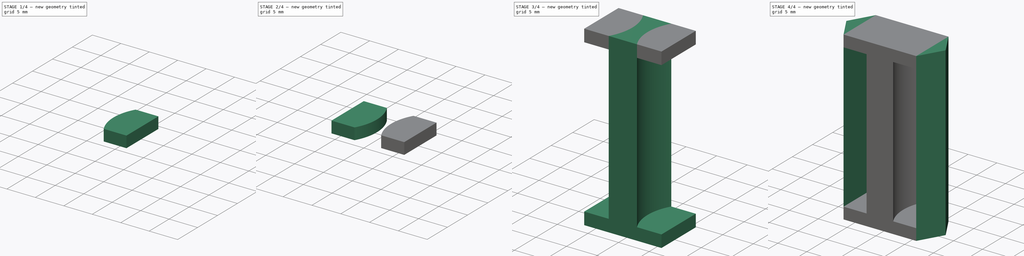
[diagram: build sequence overview — one tinted view per stage of 4, left to right]
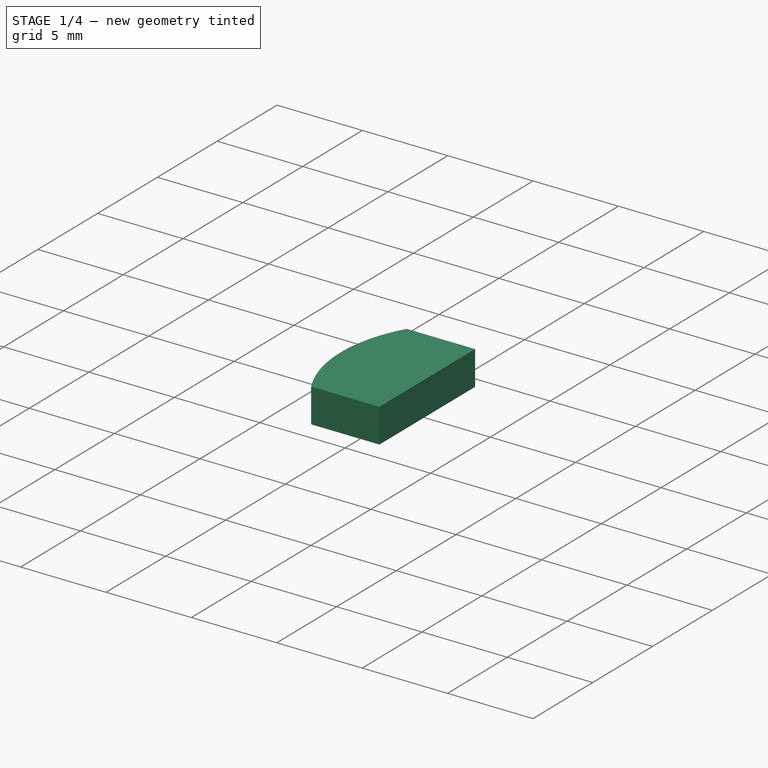
[diagram: stage 1 of 4 — iso view after this stage's code; geometry added in this stage tinted green]
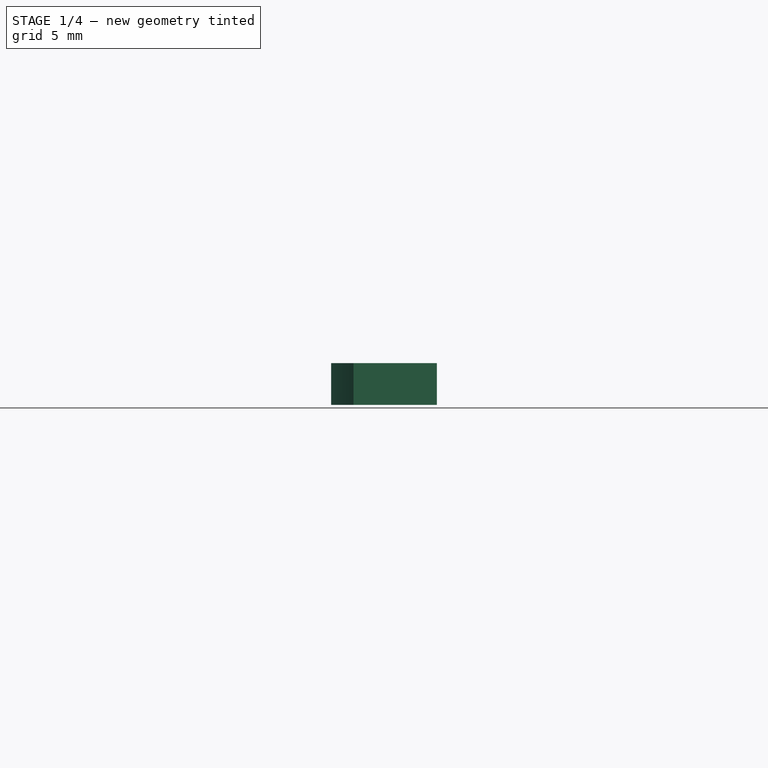
[diagram: stage 1 of 4 — front view after this stage's code; geometry added in this stage tinted green]
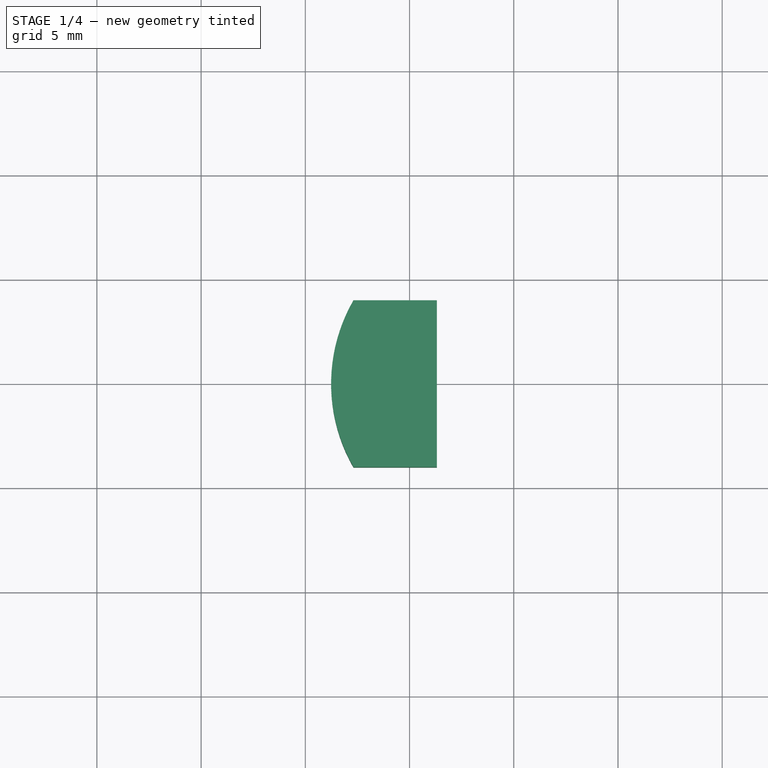
[diagram: stage 1 of 4 — top view after this stage's code; geometry added in this stage tinted green]
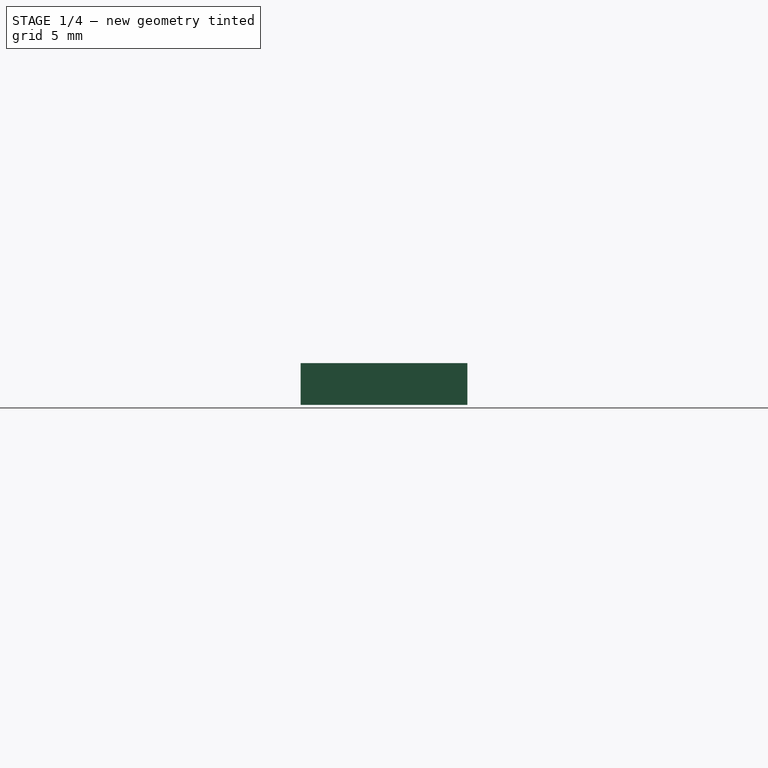
[diagram: stage 1 of 4 — right view after this stage's code; geometry added in this stage tinted green]
FCSTD DOCUMENT  (FreeCAD 0.18R16161 (Git))
Label: fixator01part
License: All rights reserved
LicenseURL: http://en.wikipedia.org/wiki/All_rights_reserved
objects: Part::Extrusion×9, Surface::Filling×5, Part::Cut×2, Sketcher::SketchObject×1, Part::MultiFuse×1, Part::Feature×1
note: 19 computed .brp shape members not serialized (recipe doc carries the construction recipe); baked Part::Feature solids carry a one-line shape summary decoded from their .brp

FEATURE [Part::Extrusion] Extrude003
  Base = -> Surface002
  Dir = (0,0,1)
  DirMode = 0
  FaceMakerClass = Part::FaceMakerBullseye
  LengthFwd = 29
  LengthRev = 0
  Solid = false
  Symmetric = false
FEATURE [Part::Extrusion] Extrude005
  Base = -> Surface002
  Dir = (0,0,1)
  DirMode = 0
  FaceMakerClass = Part::FaceMakerBullseye
  LengthFwd = 27
  LengthRev = 0
  Solid = false
  Symmetric = false
FEATURE [Part::Cut] Cut001
  Base = -> Extrude003
  Tool = -> Extrude005
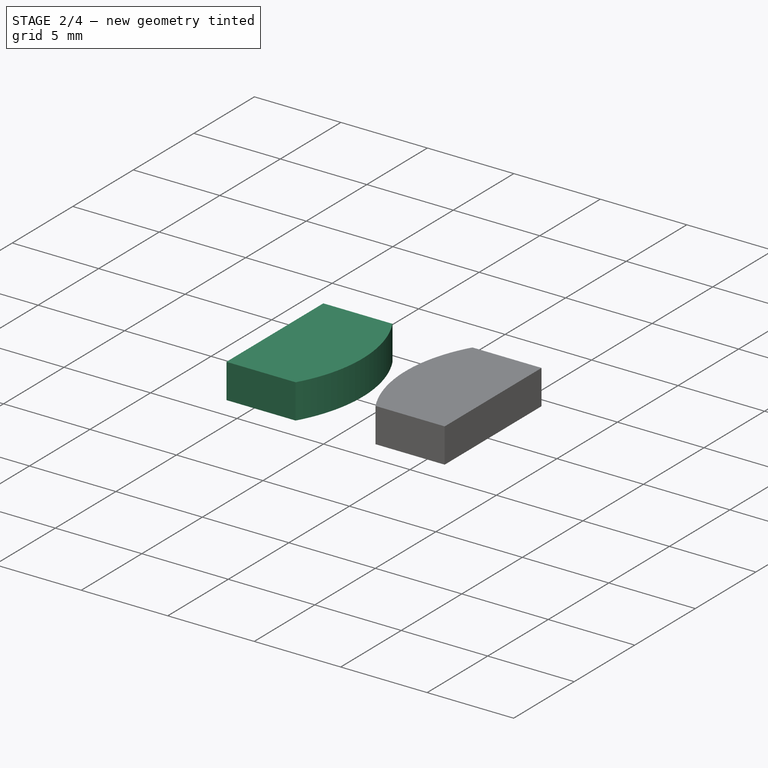
[diagram: stage 2 of 4 — iso view after this stage's code; geometry added in this stage tinted green]
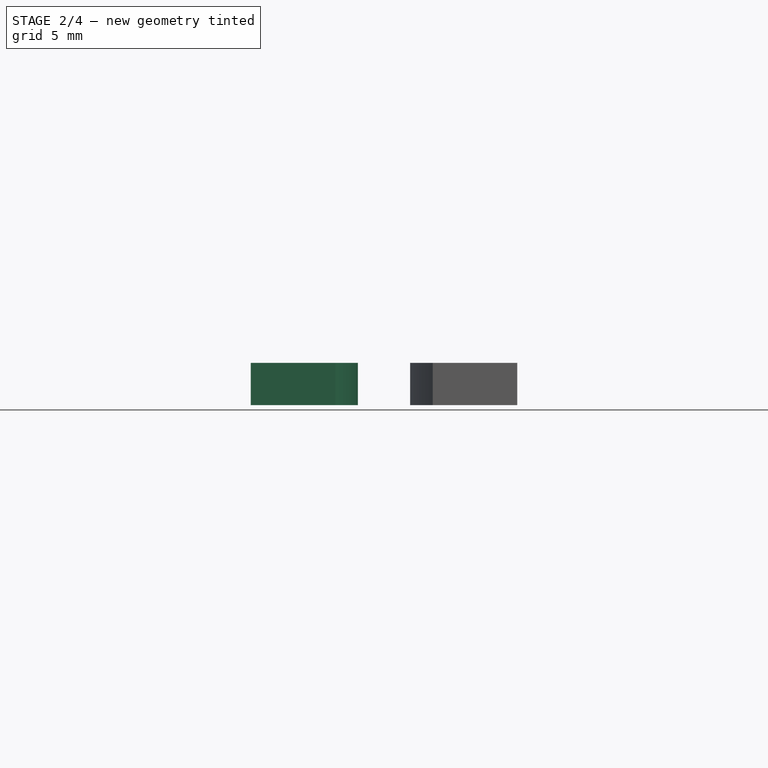
[diagram: stage 2 of 4 — front view after this stage's code; geometry added in this stage tinted green]
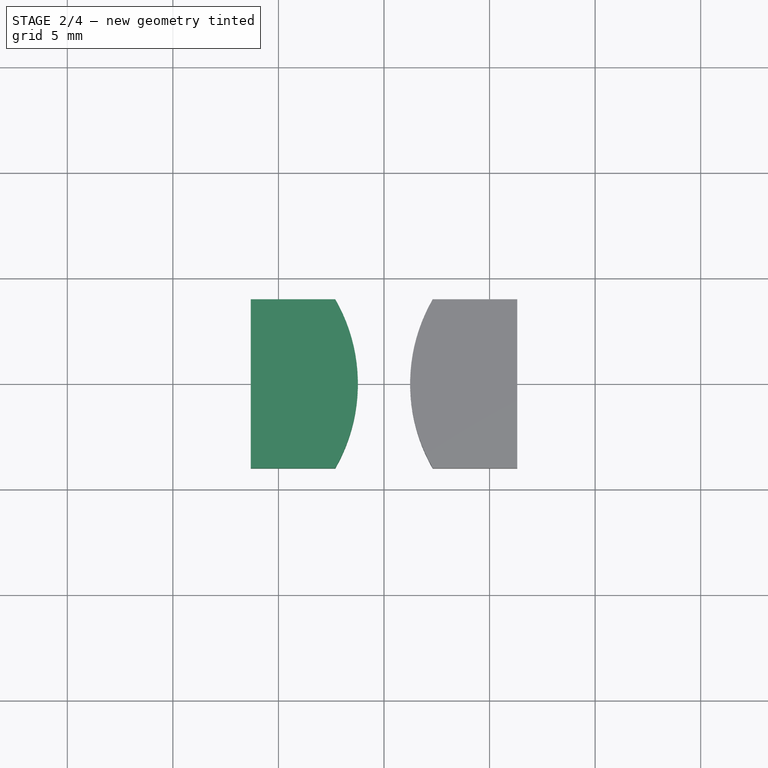
[diagram: stage 2 of 4 — top view after this stage's code; geometry added in this stage tinted green]
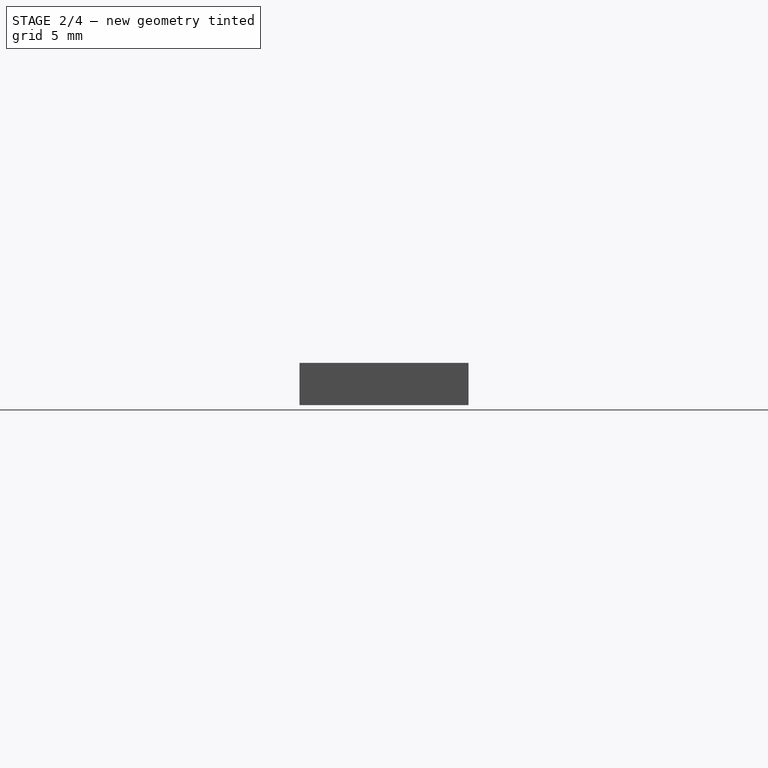
[diagram: stage 2 of 4 — right view after this stage's code; geometry added in this stage tinted green]
FEATURE [Part::Extrusion] Extrude004
  Base = -> Surface003
  Dir = (0,0,1)
  DirMode = 0
  FaceMakerClass = Part::FaceMakerBullseye
  LengthFwd = 29
  LengthRev = 0
  Solid = false
  Symmetric = false
FEATURE [Part::Extrusion] Extrude006
  Base = -> Surface003
  Dir = (0,0,1)
  DirMode = 0
  FaceMakerClass = Part::FaceMakerBullseye
  LengthFwd = 27
  LengthRev = 0
  Solid = false
  Symmetric = false
FEATURE [Part::Cut] Cut
  Base = -> Extrude004
  Tool = -> Extrude006
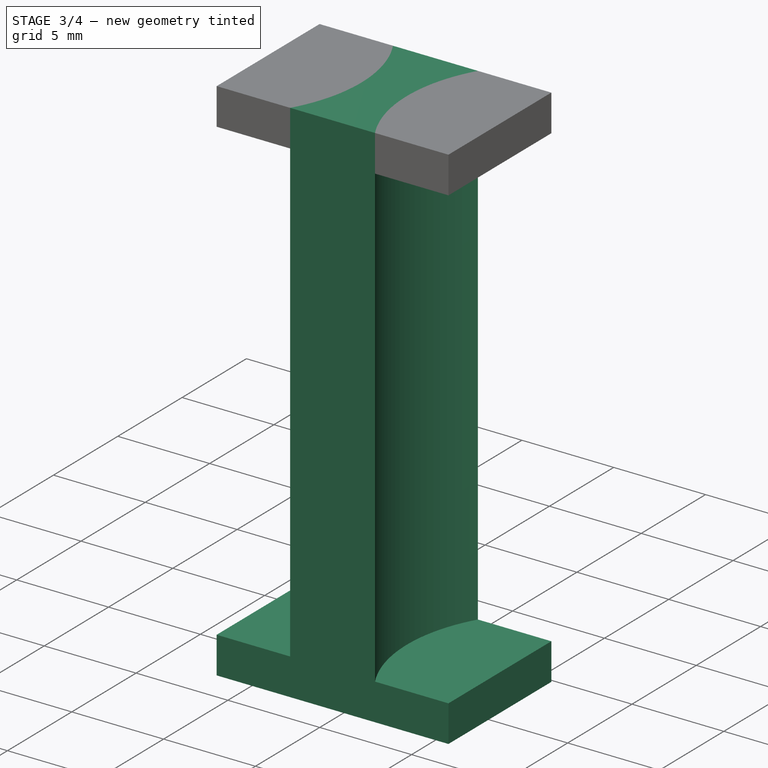
[diagram: stage 3 of 4 — iso view after this stage's code; geometry added in this stage tinted green]
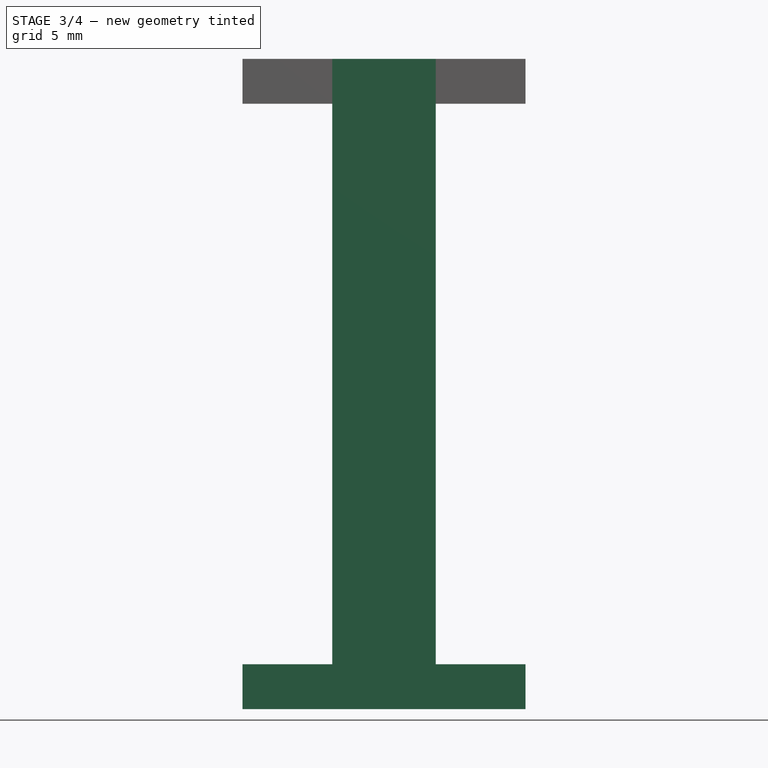
[diagram: stage 3 of 4 — front view after this stage's code; geometry added in this stage tinted green]
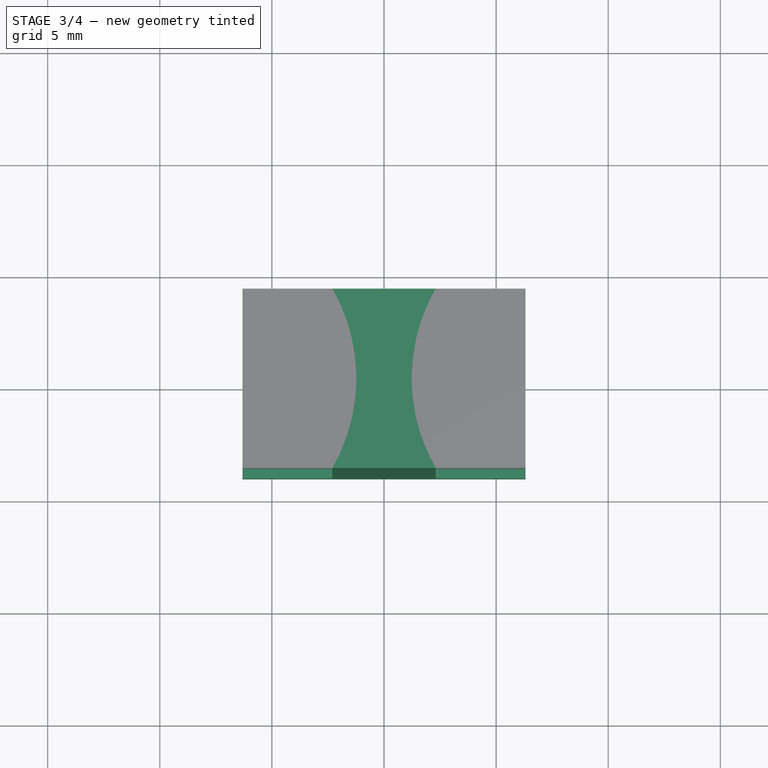
[diagram: stage 3 of 4 — top view after this stage's code; geometry added in this stage tinted green]
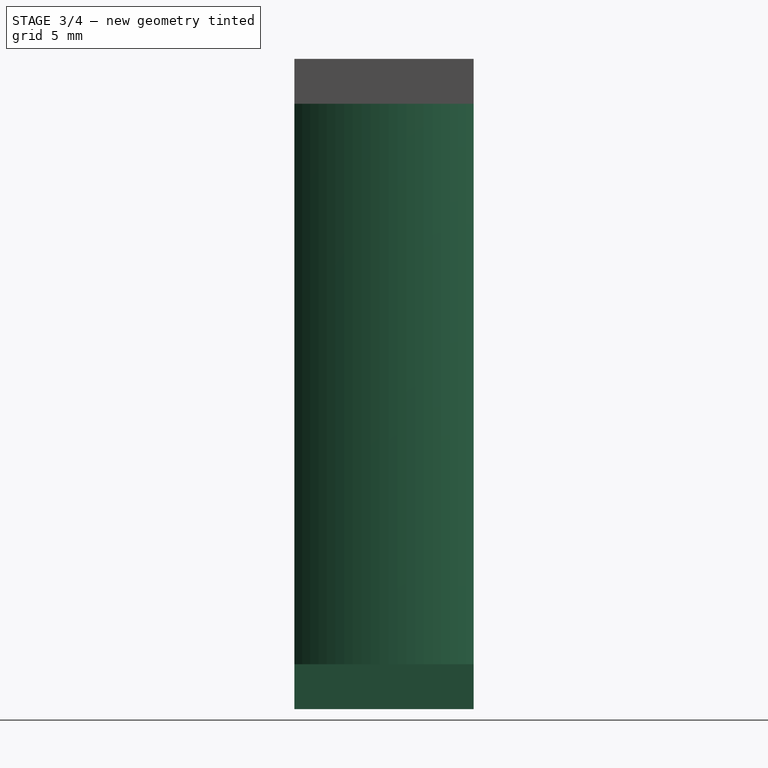
[diagram: stage 3 of 4 — right view after this stage's code; geometry added in this stage tinted green]
FEATURE [Part::Extrusion] Extrude002
  Base = -> Surface004
  Dir = (0,0,1)
  DirMode = 0
  FaceMakerClass = Part::FaceMakerBullseye
  LengthFwd = 29
  LengthRev = 0
  Solid = false
  Symmetric = false
FEATURE [Part::Extrusion] Extrude007
  Base = -> Surface002
  Dir = (0,0,1)
  DirMode = 0
  FaceMakerClass = Part::FaceMakerBullseye
  LengthFwd = 2
  LengthRev = 0
  Solid = false
  Symmetric = false
FEATURE [Part::Extrusion] Extrude008
  Base = -> Surface003
  Dir = (0,0,1)
  DirMode = 0
  FaceMakerClass = Part::FaceMakerBullseye
  LengthFwd = 2
  LengthRev = 0
  Solid = false
  Symmetric = false
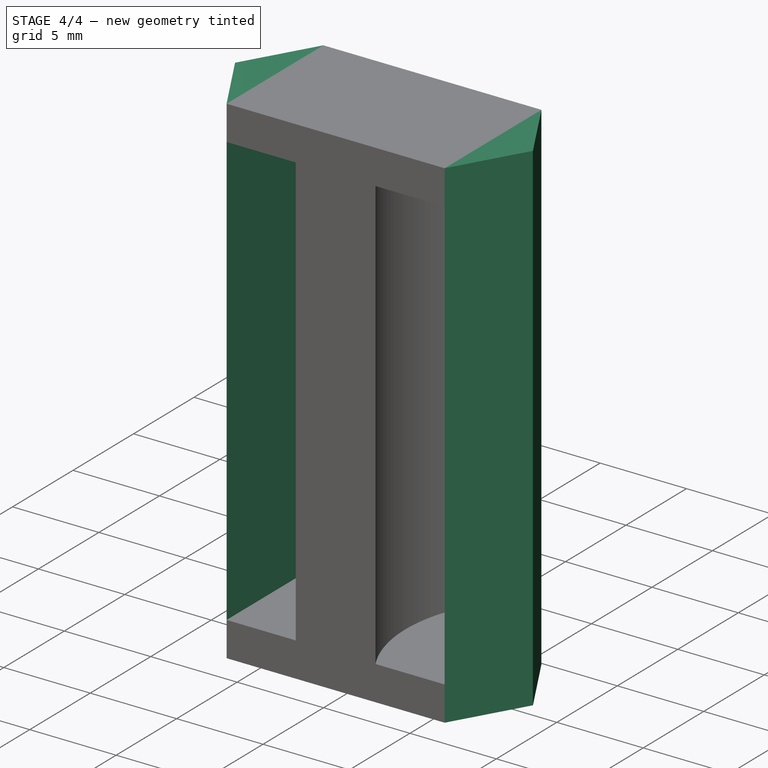
[diagram: stage 4 of 4 — iso view after this stage's code; geometry added in this stage tinted green]
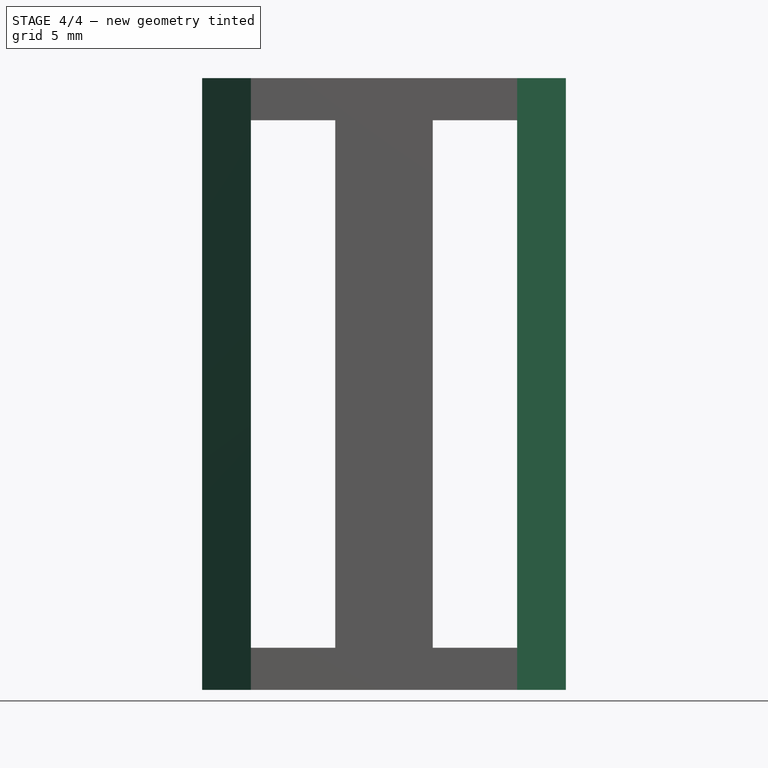
[diagram: stage 4 of 4 — front view after this stage's code; geometry added in this stage tinted green]
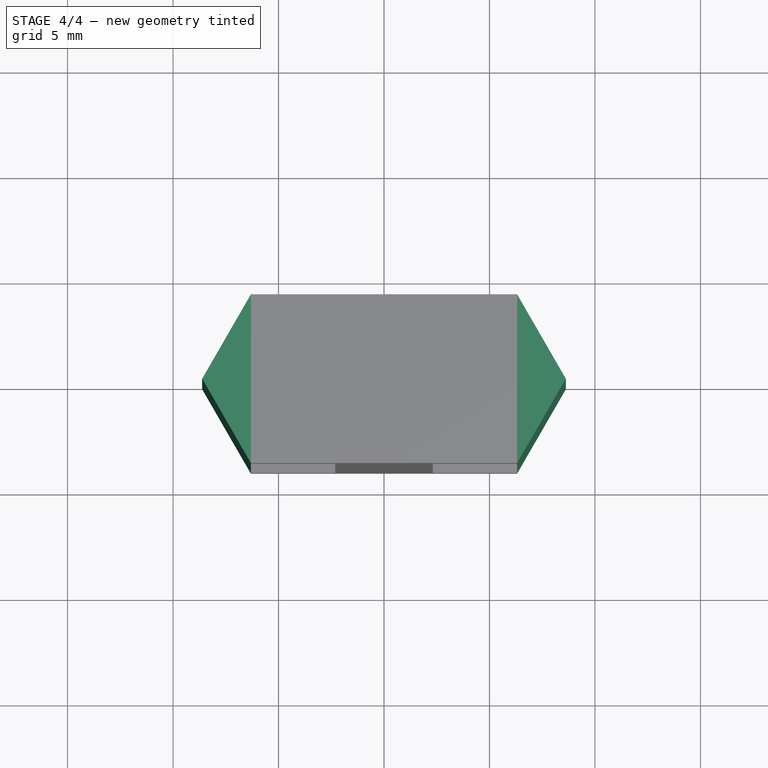
[diagram: stage 4 of 4 — top view after this stage's code; geometry added in this stage tinted green]
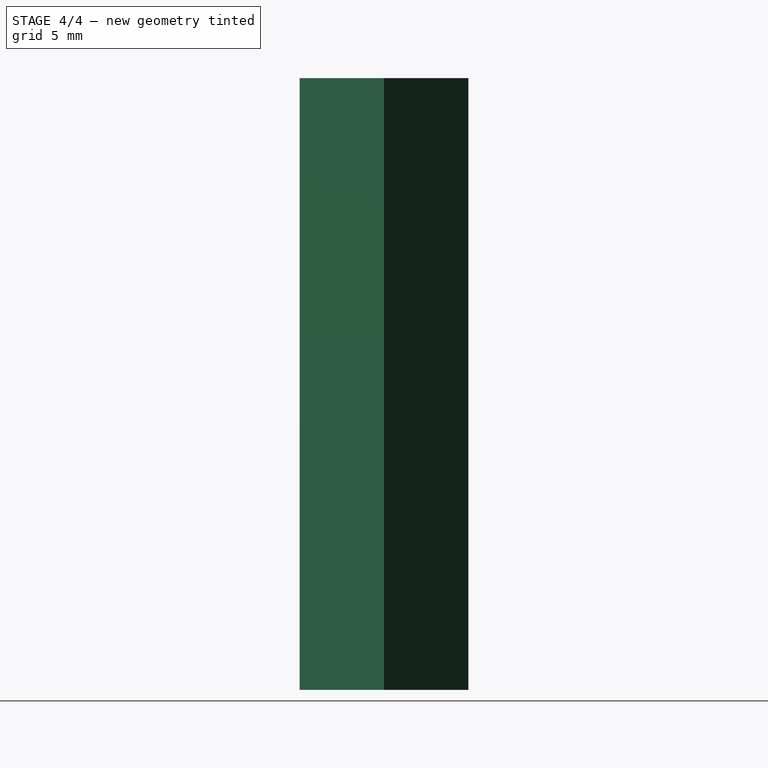
[diagram: stage 4 of 4 — right view after this stage's code; geometry added in this stage tinted green]
FEATURE [Sketcher::SketchObject] Sketch
  sketch-geometry (20):
    g0: LineSegment StartX=2.3094 StartY=4 StartZ=0 EndX=-2.3094 EndY=4 EndZ=0
    g1: LineSegment StartX=-2.3094 StartY=4 StartZ=0 EndX=0 EndY=0 EndZ=0
    g2: LineSegment StartX=0 StartY=0 StartZ=0 EndX=2.3094 EndY=4 EndZ=0
    g3: Circle [constr] CenterX=0 CenterY=2.66667 CenterZ=0 NormalX=0 NormalY=0 NormalZ=1 AngleXU=0 Radius=2.66667
    g4: LineSegment StartX=2.3094 StartY=-4 StartZ=0 EndX=0 EndY=0 EndZ=0
    g5: LineSegment StartX=0 StartY=0 StartZ=0 EndX=-2.3094 EndY=-4 EndZ=0
    g6: LineSegment StartX=-2.3094 StartY=-4 StartZ=0 EndX=2.3094 EndY=-4 EndZ=0
    g7: Circle [constr] CenterX=0 CenterY=-2.66667 CenterZ=0 NormalX=0 NormalY=0 NormalZ=1 AngleXU=0 Radius=2.66667
    g8: LineSegment StartX=2.3094 StartY=4 StartZ=0 EndX=6.3094 EndY=4 EndZ=0
    g9: LineSegment StartX=2.3094 StartY=-4 StartZ=0 EndX=6.3094 EndY=-4 EndZ=0
    g10: LineSegment StartX=6.3094 StartY=4 StartZ=0 EndX=6.3094 EndY=-4 EndZ=0
    g11: LineSegment StartX=6.3094 StartY=4 StartZ=0 EndX=8.6188 EndY=0 EndZ=0
    g12: LineSegment StartX=6.3094 StartY=-4 StartZ=0 EndX=8.6188 EndY=0 EndZ=0
    g13: LineSegment StartX=-2.3094 StartY=4 StartZ=0 EndX=-6.3094 EndY=4 EndZ=0
    g14: LineSegment StartX=-2.3094 StartY=-4 StartZ=0 EndX=-6.3094 EndY=-4 EndZ=0
    g15: LineSegment StartX=-6.3094 StartY=4 StartZ=0 EndX=-6.3094 EndY=-4 EndZ=0
    g16: LineSegment StartX=-6.3094 StartY=4 StartZ=0 EndX=-8.6188 EndY=0 EndZ=0
    g17: LineSegment StartX=-8.6188 StartY=0 StartZ=0 EndX=-6.3094 EndY=-4 EndZ=0
    g18: ArcOfCircle CenterX=9.2376 CenterY=4e-16 CenterZ=0 NormalX=0 NormalY=0 NormalZ=1 AngleXU=0 Radius=8 StartAngle=2.61799 EndAngle=3.66519
    g19: ArcOfCircle CenterX=-9.2376 CenterY=-2e-16 CenterZ=0 NormalX=0 NormalY=0 NormalZ=1 AngleXU=0 Radius=8 StartAngle=5.75959 EndAngle=6.80678
  constraints (54):
    c: Coincident(g0,g1)
    c: Coincident(g1,g2)
    c: Coincident(g2,g0)
    c: Equal(g0,g1)
    c: Equal(g0,g2)
    c: PointOnObject(g0,g3)
    c: PointOnObject(g1,g3)
    c: PointOnObject(g2,g3)
    c: PointOnObject(g3,g-2)
    c: Coincident(g1,g-1)
    c: Coincident(g4,g5)
    c: Coincident(g5,g6)
    c: Coincident(g6,g4)
    c: Equal(g4,g5)
    c: Equal(g4,g6)
    c: PointOnObject(g4,g7)
    c: PointOnObject(g5,g7)
    c: PointOnObject(g6,g7)
    c: PointOnObject(g7,g-2)
    c: Coincident(g4,g1)
    c: Equal(g6,g0)
    c: Horizontal(g8)
    c: Coincident(g8,g0)
    c: DistanceX(g8,g8) = 4
    c: Horizontal(g9)
    c: Coincident(g9,g4)
    c: Equal(g9,g8)
    c: Coincident(g10,g8)
    c: Coincident(g10,g9)
    c: Coincident(g11,g8)
    c: Coincident(g12,g9)
    c: PointOnObject(g11,g-1)
    c: Coincident(g12,g11)
    c: DistanceY(g9,g8) = 8
    c: Equal(g11,g2)
    c: Coincident(g13,g0)
    c: Coincident(g14,g5)
    c: Horizontal(g13)
    c: Horizontal(g14)
    c: Coincident(g15,g13)
    c: Coincident(g15,g14)
    c: Equal(g8,g13)
    c: Equal(g14,g13)
    c: Coincident(g16,g13)
    c: Coincident(g17,g14)
    c: PointOnObject(g16,g-1)
    c: Coincident(g17,g16)
    c: Equal(g16,g0)
    c: Coincident(g18,g0)
    c: Coincident(g18,g4)
    c: Radius(g18) = 8
    c: Coincident(g19,g0)
    c: Coincident(g19,g5)
    c: Equal(g19,g18)
FEATURE [Surface::Filling] Surface
  Anisotropy = false
  BoundaryEdges = -> [Sketch]
  BoundaryOrder = [0,0,0]
  Degree = 3
  Iterations = 2
  MaximumDegree = 8
  MaximumSegments = 9
  PointsOnCurve = 15
  TolAngular = 0.01
  TolCurvature = 0.1
  Tolerance2d = 1e-05
  Tolerance3d = 0.0001
FEATURE [Surface::Filling] Surface001
  Anisotropy = false
  BoundaryEdges = -> [Sketch]
  BoundaryOrder = [0,0,0]
  Degree = 3
  Iterations = 2
  MaximumDegree = 8
  MaximumSegments = 9
  PointsOnCurve = 15
  TolAngular = 0.01
  TolCurvature = 0.1
  Tolerance2d = 1e-05
  Tolerance3d = 0.0001
FEATURE [Surface::Filling] Surface002
  Anisotropy = false
  BoundaryEdges = -> [Sketch]
  BoundaryOrder = [0,0,0,0]
  Degree = 3
  Iterations = 2
  MaximumDegree = 8
  MaximumSegments = 9
  PointsOnCurve = 15
  TolAngular = 0.01
  TolCurvature = 0.1
  Tolerance2d = 1e-05
  Tolerance3d = 0.0001
FEATURE [Surface::Filling] Surface003
  Anisotropy = false
  BoundaryEdges = -> [Sketch]
  BoundaryOrder = [0,0,0,0]
  Degree = 3
  Iterations = 2
  MaximumDegree = 8
  MaximumSegments = 9
  PointsOnCurve = 15
  TolAngular = 0.01
  TolCurvature = 0.1
  Tolerance2d = 1e-05
  Tolerance3d = 0.0001
FEATURE [Surface::Filling] Surface004
  Anisotropy = false
  BoundaryEdges = -> [Sketch]
  BoundaryOrder = [0,0,0,0]
  Degree = 3
  Iterations = 2
  MaximumDegree = 8
  MaximumSegments = 9
  PointsOnCurve = 15
  TolAngular = 0.01
  TolCurvature = 0.1
  Tolerance2d = 1e-05
  Tolerance3d = 0.0001
FEATURE [Part::Extrusion] Extrude
  Base = -> Surface
  Dir = (0,0,1)
  DirMode = 0
  FaceMakerClass = Part::FaceMakerBullseye
  LengthFwd = 29
  LengthRev = 0
  Solid = false
  Symmetric = false
FEATURE [Part::Extrusion] Extrude001
  Base = -> Surface001
  Dir = (0,0,1)
  DirMode = 0
  FaceMakerClass = Part::FaceMakerBullseye
  LengthFwd = 29
  LengthRev = 0
  Solid = false
  Symmetric = false
FEATURE [Part::MultiFuse] Fusion
  Shapes = -> [Extrude,Extrude001,Extrude002,Extrude007,Extrude008,Cut,Cut001]
FEATURE [Part::Feature] Fusion001
  shape: bbox 17.55 x 8.8 x 29 mm, 24 faces (baked)
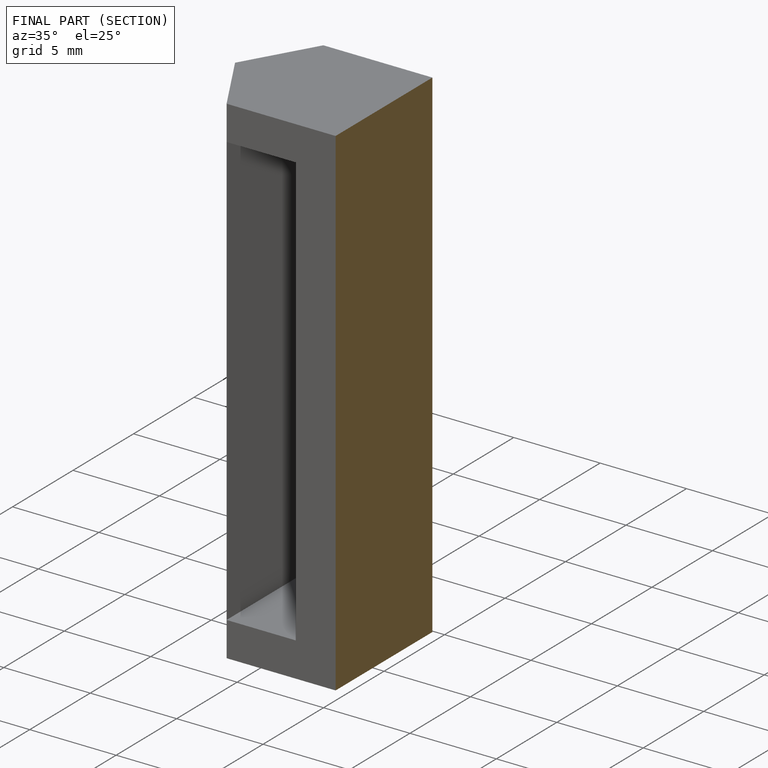
[diagram: finished part — half-section view (interior)]
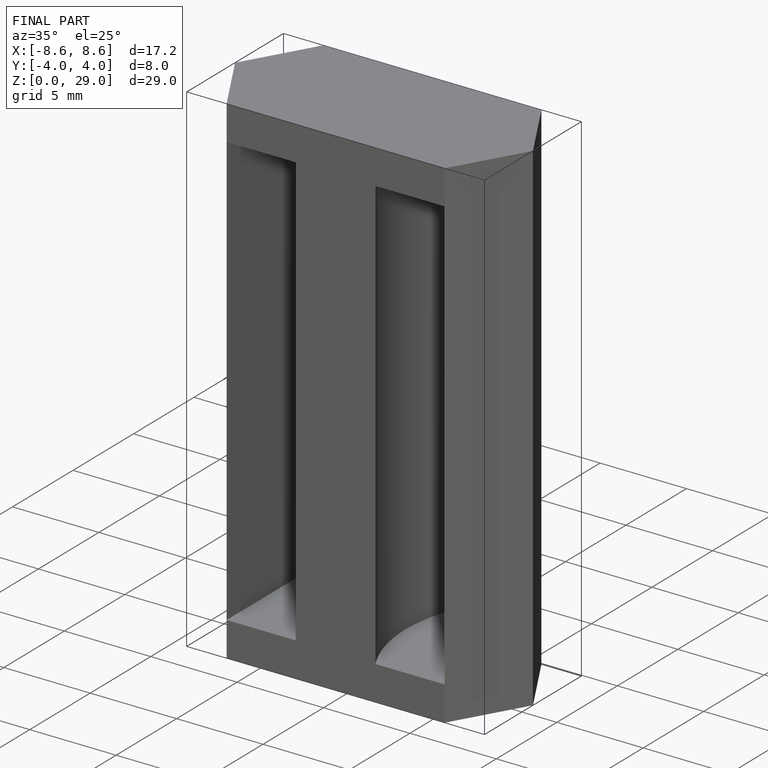
[diagram: finished part — iso view with bounding-box wireframe]
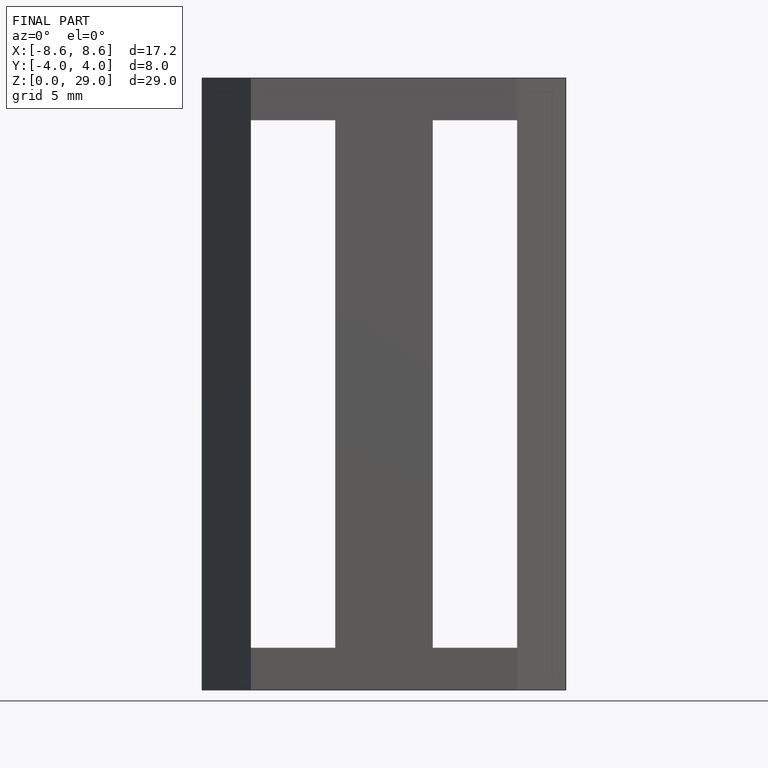
[diagram: finished part — front view with bounding-box wireframe]
